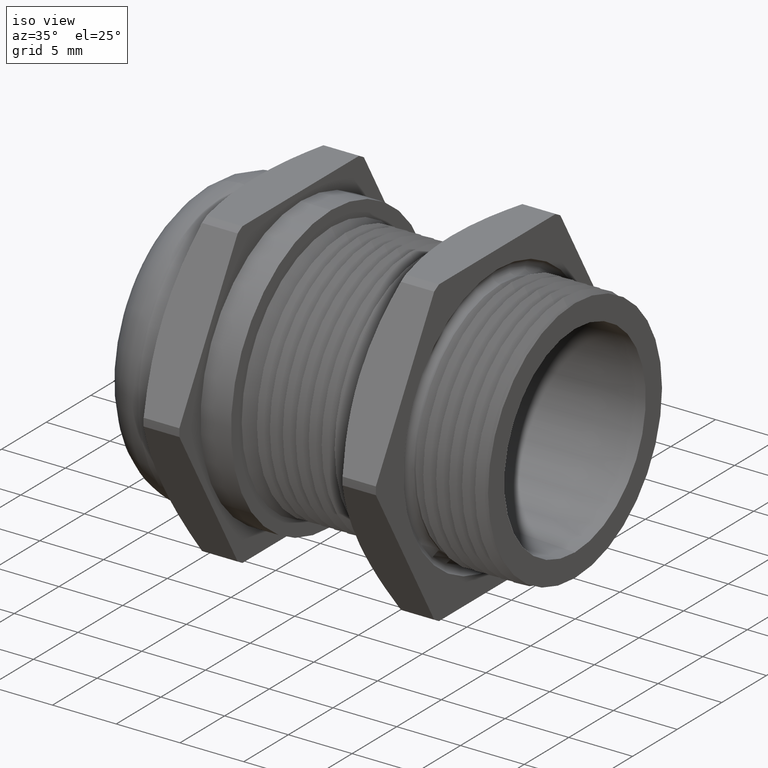
[diagram: clean part render]
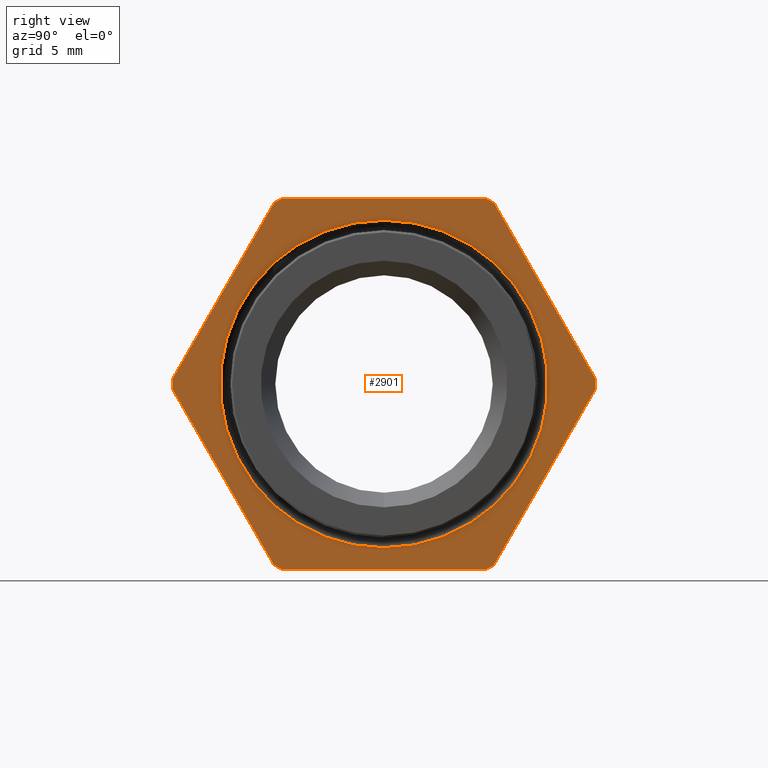
[diagram: tour spotlight — one face highlighted and labeled with its STEP entity id]
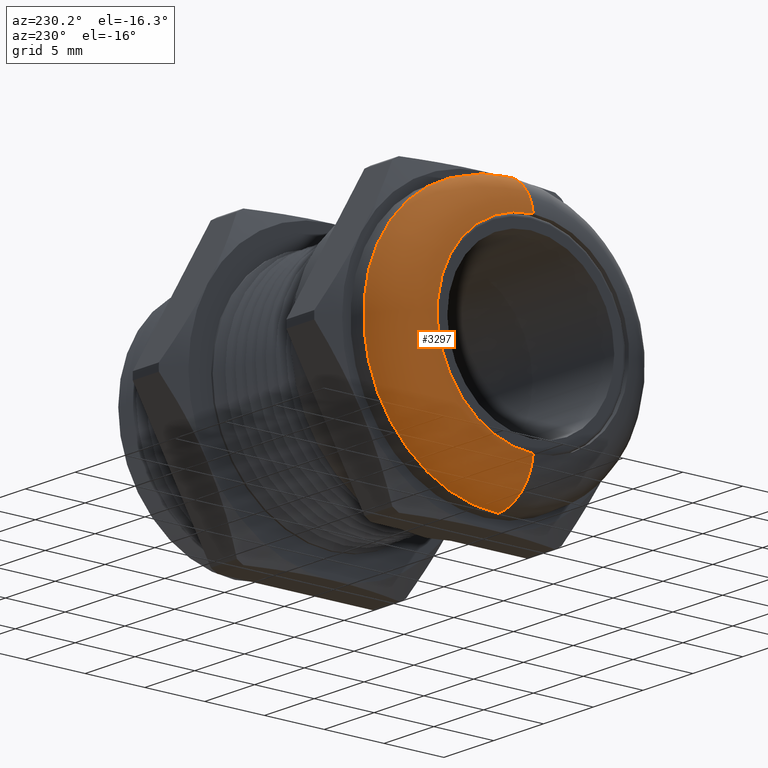
[diagram: tour spotlight — one face highlighted and labeled with its STEP entity id]
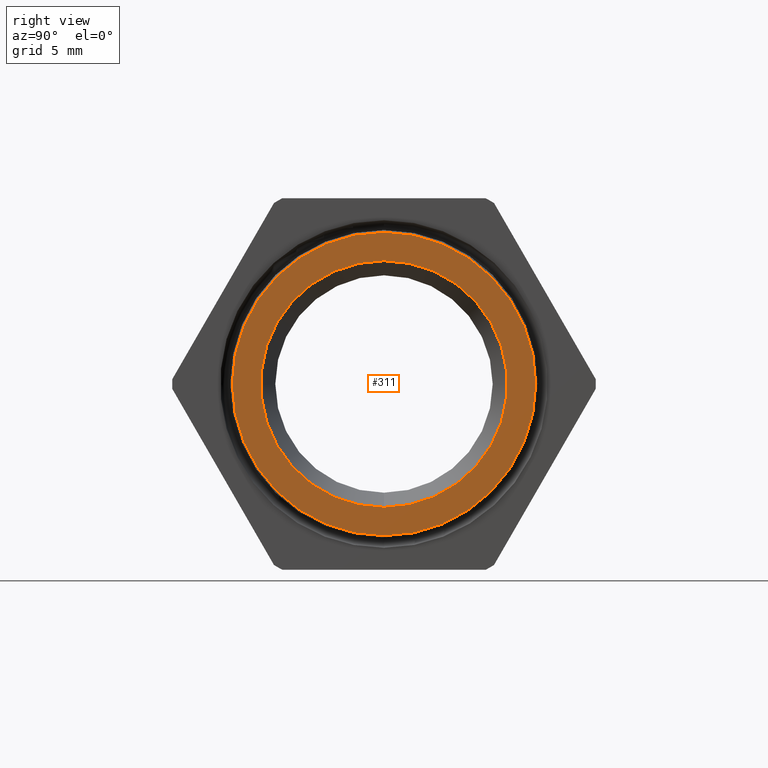
[diagram: tour spotlight — one face highlighted and labeled with its STEP entity id]
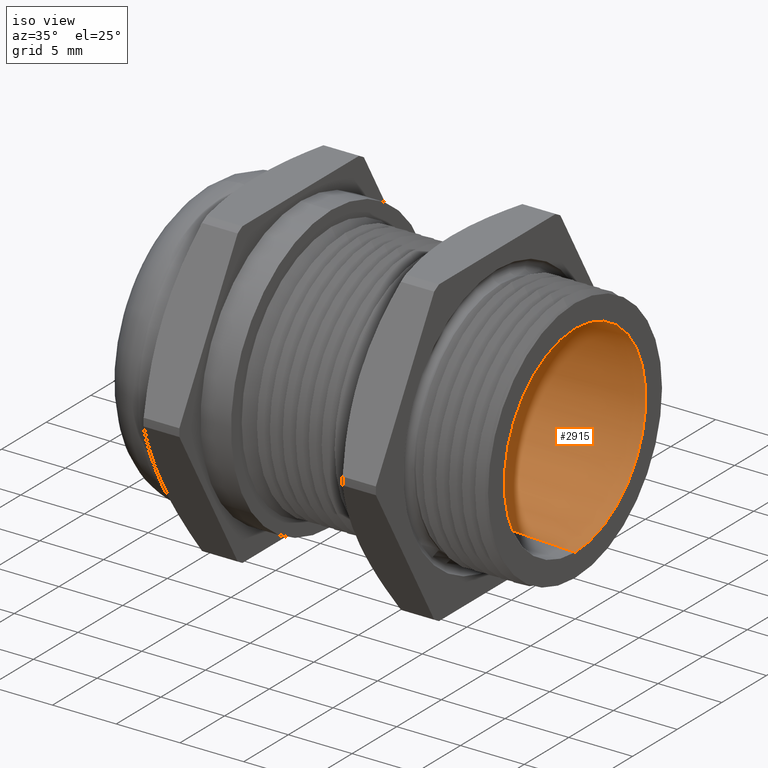
[diagram: tour spotlight — one face highlighted and labeled with its STEP entity id]
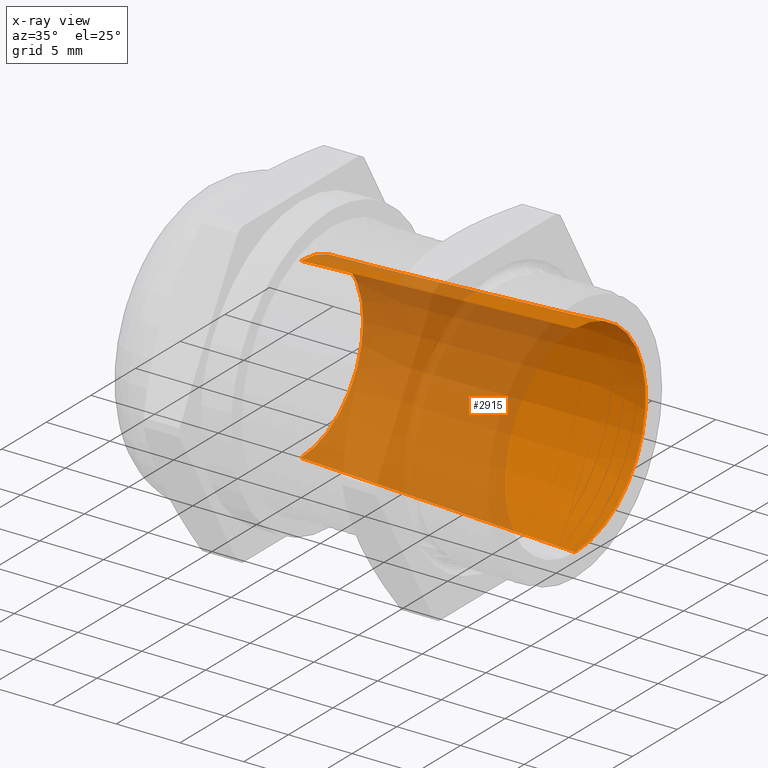
[diagram: x-ray of the same camera — body ghosted, this tour face saturated]
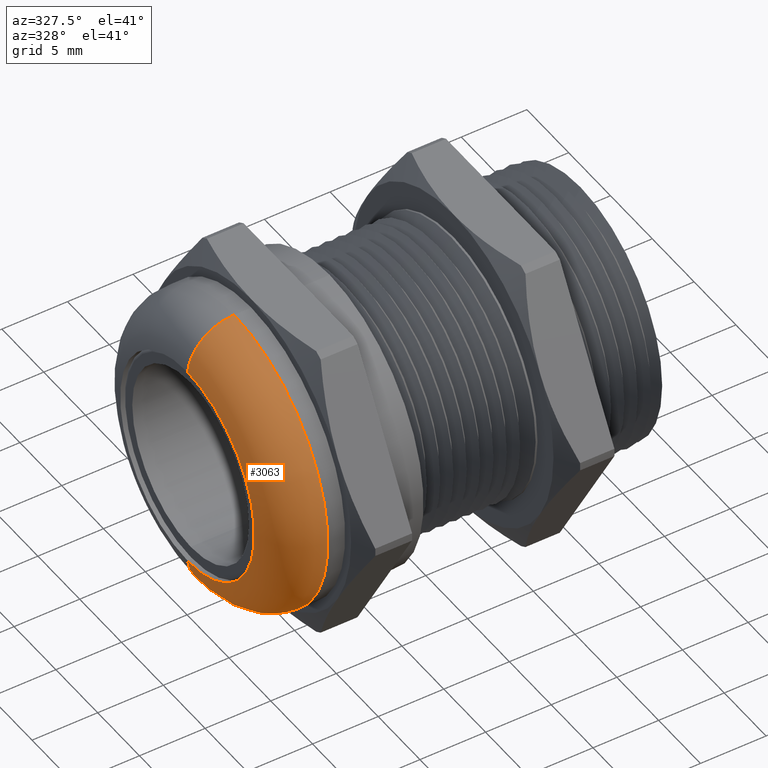
[diagram: tour spotlight — one face highlighted and labeled with its STEP entity id]
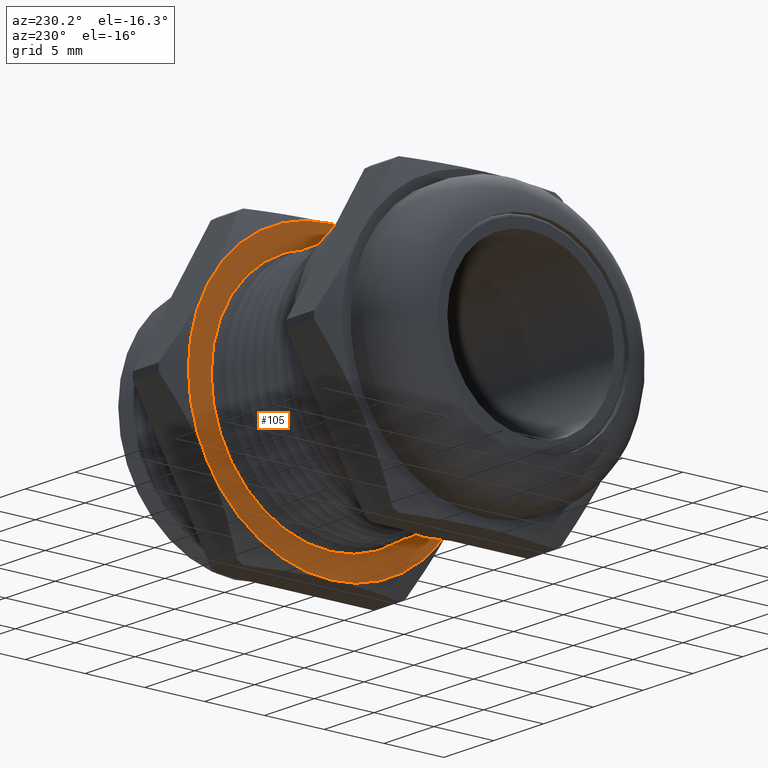
[diagram: tour spotlight — one face highlighted and labeled with its STEP entity id]
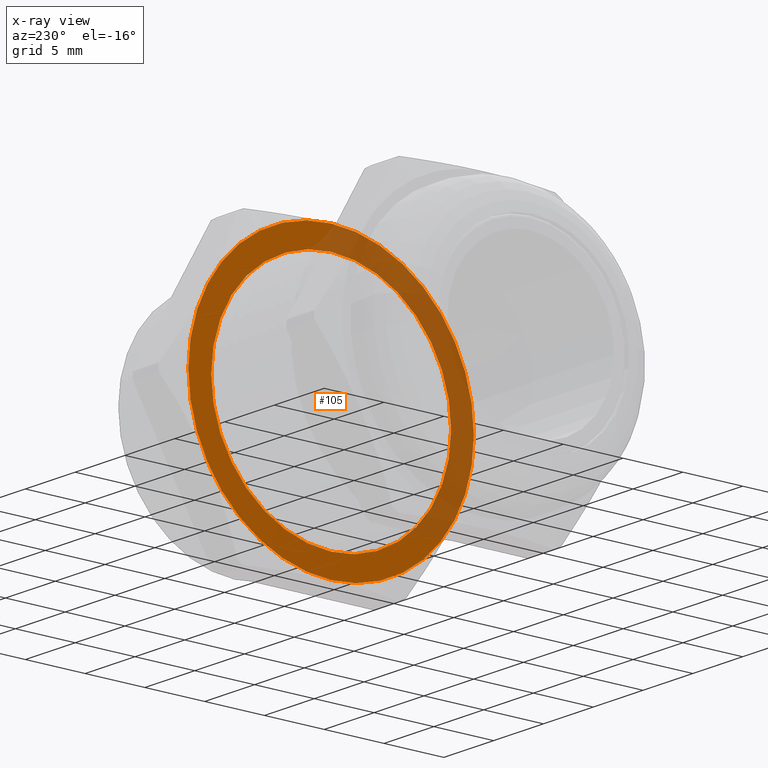
[diagram: x-ray of the same camera — body ghosted, this tour face saturated]
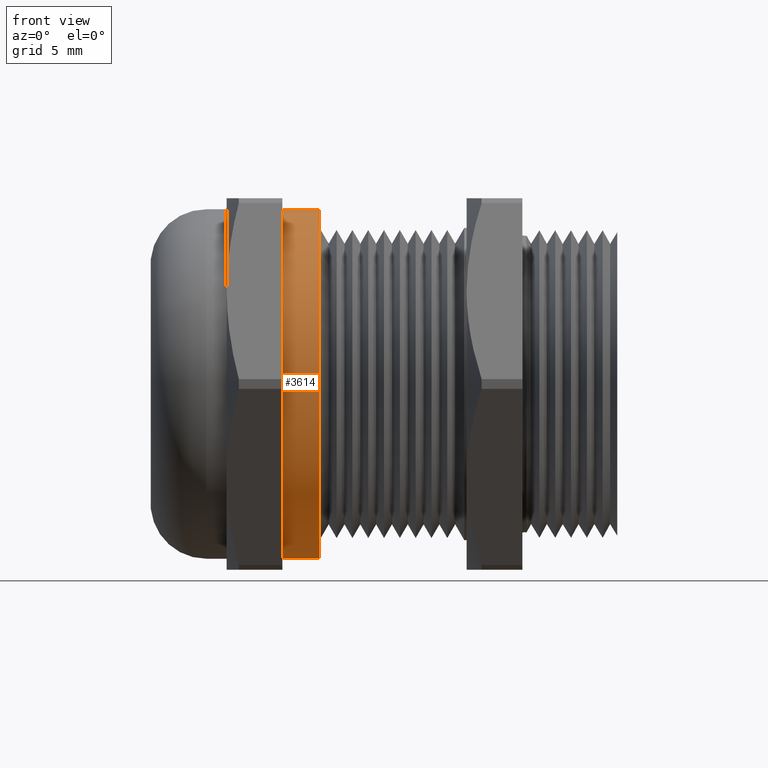
[diagram: tour spotlight — one face highlighted and labeled with its STEP entity id]
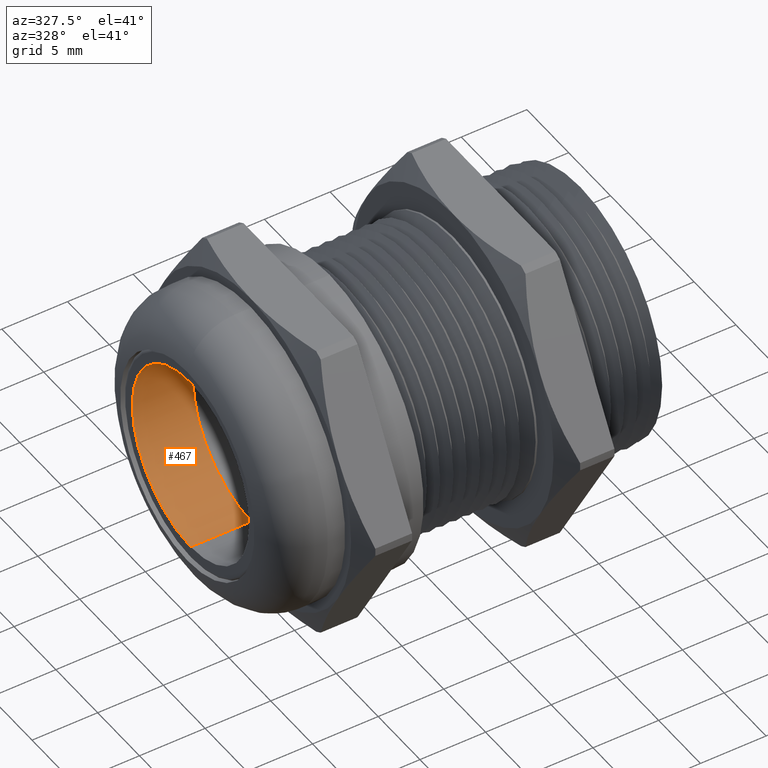
[diagram: tour spotlight — one face highlighted and labeled with its STEP entity id]
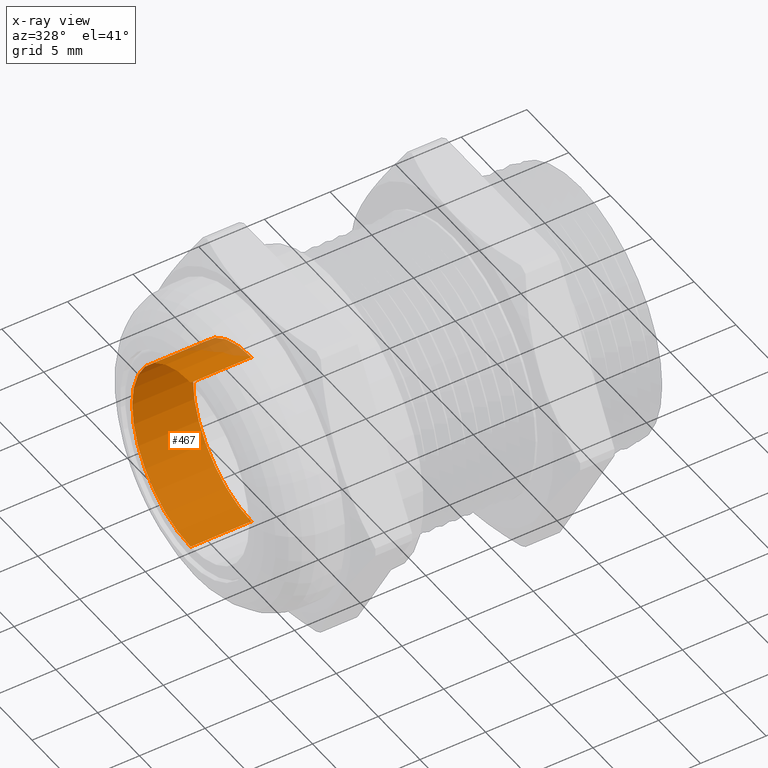
[diagram: x-ray of the same camera — body ghosted, this tour face saturated]
A machine part: a face-by-face anatomy tour. The part has 129 B-rep faces; the first image is the clean iso view, then the 8 largest visible faces are spotlighted one at a time (largest first), each with its STEP entity span.

Face 1 — right view, entity #2901. In plain terms, the highlighted planar face has unit normal (-1, 0, 0).
Definition (entity closure, byte-faithful):
#4 = VERTEX_POINT ( 'NONE', #461 ) ;
#6 = EDGE_CURVE ( 'NONE', #4, #7, #460, .T. ) ;
#7 = VERTEX_POINT ( 'NONE', #514 ) ;
#31 = EDGE_CURVE ( 'NONE', #44, #3141, #564, .T. ) ;
#44 = VERTEX_POINT ( 'NONE', #585 ) ;
#46 = EDGE_CURVE ( 'NONE', #44, #47, #584, .T. ) ;
#47 = VERTEX_POINT ( 'NONE', #579 ) ;
#62 = EDGE_CURVE ( 'NONE', #3128, #3157, #625, .T. ) ;
#77 = EDGE_CURVE ( 'NONE', #3154, #3147, #652, .T. ) ;
#82 = EDGE_CURVE ( 'NONE', #3196, #7, #633, .T. ) ;
#92 = EDGE_CURVE ( 'NONE', #3144, #3188, #671, .T. ) ;
#97 = EDGE_CURVE ( 'NONE', #4, #47, #714, .T. ) ;
#447 = VERTEX_POINT ( 'NONE', #1388 ) ;
#456 = DIRECTION ( 'NONE',  ( 0.0000000000000000000, 0.0000000000000000000, 1.000000000000000000 ) ) ;
#457 = DIRECTION ( 'NONE',  ( -1.000000000000000000, 0.0000000000000000000, 0.0000000000000000000 ) ) ;
#458 = CARTESIAN_POINT ( 'NONE',  ( 0.3499999999999998100, 0.0000000000000000000, 0.0000000000000000000 ) ) ;
#459 = AXIS2_PLACEMENT_3D ( 'NONE', #458, #457, #456 ) ;
#460 = CIRCLE ( 'NONE', #459, 0.5357999999999999400 ) ;
#461 = CARTESIAN_POINT ( 'NONE',  ( 0.3499999999999999800, 0.5356609023026838200, 0.01220810158356288300 ) ) ;
#514 = CARTESIAN_POINT ( 'NONE',  ( 0.3499999999999998100, 0.5356609023026838200, -0.01220810158356293500 ) ) ;
#561 = DIRECTION ( 'NONE',  ( 0.0000000000000000000, -1.000000000000000000, 0.0000000000000000000 ) ) ;
#562 = VECTOR ( 'NONE', #561, 39.37007874015748100 ) ;
#563 = CARTESIAN_POINT ( 'NONE',  ( 0.3499999999999999800, 0.2572579250479953800, 0.4699999999999999200 ) ) ;
#564 = LINE ( 'NONE', #563, #562 ) ;
#579 = CARTESIAN_POINT ( 'NONE',  ( 0.3499999999999998100, 0.2784029772546880400, 0.4577918984164371900 ) ) ;
#580 = DIRECTION ( 'NONE',  ( 0.0000000000000000000, 0.0000000000000000000, 1.000000000000000000 ) ) ;
#581 = DIRECTION ( 'NONE',  ( -1.000000000000000000, 0.0000000000000000000, 0.0000000000000000000 ) ) ;
#582 = CARTESIAN_POINT ( 'NONE',  ( 0.3499999999999998100, 0.0000000000000000000, 0.0000000000000000000 ) ) ;
#583 = AXIS2_PLACEMENT_3D ( 'NONE', #582, #581, #580 ) ;
#584 = CIRCLE ( 'NONE', #583, 0.5357999999999999400 ) ;
#585 = CARTESIAN_POINT ( 'NONE',  ( 0.3499999999999999800, 0.2572579250479953800, 0.4699999999999999200 ) ) ;
#614 = DIRECTION ( 'NONE',  ( 0.0000000000000000000, -0.5000000000000003300, -0.8660254037844383700 ) ) ;
#615 = VECTOR ( 'NONE', #614, 39.37007874015748100 ) ;
#624 = CARTESIAN_POINT ( 'NONE',  ( 0.3499999999999999800, -0.2784029772546880400, 0.4577918984164371900 ) ) ;
#625 = LINE ( 'NONE', #624, #615 ) ;
#633 = LINE ( 'NONE', #639, #687 ) ;
#639 = CARTESIAN_POINT ( 'NONE',  ( 0.3499999999999999800, 0.2784029772546883800, -0.4577918984164369200 ) ) ;
#641 = DIRECTION ( 'NONE',  ( 0.0000000000000000000, 0.5000000000000000000, -0.8660254037844386000 ) ) ;
#650 = VECTOR ( 'NONE', #641, 39.37007874015748900 ) ;
#651 = CARTESIAN_POINT ( 'NONE',  ( 0.3499999999999999800, -0.5356609023026838200, -0.01220810158356306800 ) ) ;
#652 = LINE ( 'NONE', #651, #650 ) ;
#669 = VECTOR ( 'NONE', #721, 39.37007874015748100 ) ;
#670 = CARTESIAN_POINT ( 'NONE',  ( 0.3499999999999999800, -0.2572579250479952700, -0.4699999999999999200 ) ) ;
#671 = LINE ( 'NONE', #670, #669 ) ;
#686 = DIRECTION ( 'NONE',  ( 0.0000000000000000000, 0.5000000000000000000, 0.8660254037844386000 ) ) ;
#687 = VECTOR ( 'NONE', #686, 39.37007874015748900 ) ;
#711 = DIRECTION ( 'NONE',  ( 0.0000000000000000000, -0.5000000000000003300, 0.8660254037844383700 ) ) ;
#712 = VECTOR ( 'NONE', #711, 39.37007874015748100 ) ;
#713 = CARTESIAN_POINT ( 'NONE',  ( 0.3499999999999999800, 0.5356609023026838200, 0.01220810158356286400 ) ) ;
#714 = LINE ( 'NONE', #713, #712 ) ;
#721 = DIRECTION ( 'NONE',  ( 0.0000000000000000000, 1.000000000000000000, 0.0000000000000000000 ) ) ;
#1388 = CARTESIAN_POINT ( 'NONE',  ( 0.3499999999999999800, 0.0000000000000000000, 0.4142260930752324500 ) ) ;
#1460 = DIRECTION ( 'NONE',  ( 0.0000000000000000000, 0.0000000000000000000, 1.000000000000000000 ) ) ;
#1461 = DIRECTION ( 'NONE',  ( -1.000000000000000000, 0.0000000000000000000, 0.0000000000000000000 ) ) ;
#1462 = CARTESIAN_POINT ( 'NONE',  ( 0.3499999999999999800, 0.5357999999999999400, 0.0000000000000000000 ) ) ;
#1463 = AXIS2_PLACEMENT_3D ( 'NONE', #1462, #1461, #1460 ) ;
#1464 = FACE_OUTER_BOUND ( 'NONE', #2889, .T. ) ;
#1465 = FACE_BOUND ( 'NONE', #2891, .T. ) ;
#1470 = PLANE ( 'NONE',  #1463 ) ;
#1759 = CARTESIAN_POINT ( 'NONE',  ( 0.3499999999999999800, -0.2784029772546880400, 0.4577918984164371900 ) ) ;
#1787 = CARTESIAN_POINT ( 'NONE',  ( 0.3499999999999998100, -0.2784029772546884900, -0.4577918984164369200 ) ) ;
#1788 = DIRECTION ( 'NONE',  ( 0.0000000000000000000, 0.0000000000000000000, 1.000000000000000000 ) ) ;
#1789 = DIRECTION ( 'NONE',  ( -1.000000000000000000, 0.0000000000000000000, 0.0000000000000000000 ) ) ;
#1790 = CARTESIAN_POINT ( 'NONE',  ( 0.3499999999999998100, 0.0000000000000000000, 0.0000000000000000000 ) ) ;
#1791 = AXIS2_PLACEMENT_3D ( 'NONE', #1790, #1789, #1788 ) ;
#1792 = CIRCLE ( 'NONE', #1791, 0.5357999999999999400 ) ;
#1793 = CARTESIAN_POINT ( 'NONE',  ( 0.3499999999999999800, -0.2572579250479953800, -0.4699999999999999200 ) ) ;
#1798 = CARTESIAN_POINT ( 'NONE',  ( 0.3499999999999998100, -0.2572579250479953800, 0.4699999999999999200 ) ) ;
#1799 = DIRECTION ( 'NONE',  ( 0.0000000000000000000, 0.0000000000000000000, 1.000000000000000000 ) ) ;
#1800 = DIRECTION ( 'NONE',  ( -1.000000000000000000, 0.0000000000000000000, 0.0000000000000000000 ) ) ;
#1801 = AXIS2_PLACEMENT_3D ( 'NONE', #1806, #1800, #1799 ) ;
#1802 = CIRCLE ( 'NONE', #1801, 0.5357999999999999400 ) ;
#1806 = CARTESIAN_POINT ( 'NONE',  ( 0.3499999999999998100, 0.0000000000000000000, 0.0000000000000000000 ) ) ;
#1827 = CARTESIAN_POINT ( 'NONE',  ( 0.3499999999999998100, -0.5356609023026838200, 0.01220810158356286400 ) ) ;
#1828 = DIRECTION ( 'NONE',  ( 0.0000000000000000000, 0.0000000000000000000, 1.000000000000000000 ) ) ;
#1829 = DIRECTION ( 'NONE',  ( -1.000000000000000000, 0.0000000000000000000, 0.0000000000000000000 ) ) ;
#1830 = CARTESIAN_POINT ( 'NONE',  ( 0.3499999999999998100, 0.0000000000000000000, 0.0000000000000000000 ) ) ;
#1831 = AXIS2_PLACEMENT_3D ( 'NONE', #1830, #1829, #1828 ) ;
#1832 = CIRCLE ( 'NONE', #1831, 0.5357999999999999400 ) ;
#1833 = CARTESIAN_POINT ( 'NONE',  ( 0.3499999999999999800, -0.5356609023026838200, -0.01220810158356305600 ) ) ;
#1880 = CARTESIAN_POINT ( 'NONE',  ( 0.3499999999999999800, 0.2784029772546883800, -0.4577918984164368600 ) ) ;
#1892 = CARTESIAN_POINT ( 'NONE',  ( 0.3499999999999998100, 0.2572579250479952700, -0.4699999999999999700 ) ) ;
#1893 = DIRECTION ( 'NONE',  ( 0.0000000000000000000, 0.0000000000000000000, 1.000000000000000000 ) ) ;
#1894 = DIRECTION ( 'NONE',  ( -1.000000000000000000, 0.0000000000000000000, 0.0000000000000000000 ) ) ;
#1895 = CARTESIAN_POINT ( 'NONE',  ( 0.3499999999999998100, 0.0000000000000000000, 0.0000000000000000000 ) ) ;
#1896 = AXIS2_PLACEMENT_3D ( 'NONE', #1895, #1894, #1893 ) ;
#1897 = CIRCLE ( 'NONE', #1896, 0.5357999999999999400 ) ;
#2075 = DIRECTION ( 'NONE',  ( 0.0000000000000000000, 0.0000000000000000000, 1.000000000000000000 ) ) ;
#2076 = DIRECTION ( 'NONE',  ( -1.000000000000000000, 0.0000000000000000000, 0.0000000000000000000 ) ) ;
#2077 = AXIS2_PLACEMENT_3D ( 'NONE', #2084, #2076, #2075 ) ;
#2078 = CIRCLE ( 'NONE', #2077, 0.4142260930752324500 ) ;
#2084 = CARTESIAN_POINT ( 'NONE',  ( 0.3499999999999999800, 0.0000000000000000000, 0.0000000000000000000 ) ) ;
#2085 = CARTESIAN_POINT ( 'NONE',  ( 0.3499999999999999800, 5.072806590078969600E-017, -0.4142260930752324500 ) ) ;
#2147 = DIRECTION ( 'NONE',  ( 0.0000000000000000000, 0.0000000000000000000, 1.000000000000000000 ) ) ;
#2148 = DIRECTION ( 'NONE',  ( -1.000000000000000000, 0.0000000000000000000, 0.0000000000000000000 ) ) ;
#2149 = CARTESIAN_POINT ( 'NONE',  ( 0.3499999999999999800, 0.0000000000000000000, 0.0000000000000000000 ) ) ;
#2150 = AXIS2_PLACEMENT_3D ( 'NONE', #2149, #2148, #2147 ) ;
#2151 = CIRCLE ( 'NONE', #2150, 0.4142260930752324500 ) ;
#2881 = ORIENTED_EDGE ( 'NONE', *, *, #77, .T. ) ;
#2882 = ORIENTED_EDGE ( 'NONE', *, *, #3146, .F. ) ;
#2883 = ORIENTED_EDGE ( 'NONE', *, *, #3156, .F. ) ;
#2884 = ORIENTED_EDGE ( 'NONE', *, *, #92, .T. ) ;
#2887 = ORIENTED_EDGE ( 'NONE', *, *, #62, .T. ) ;
#2889 = EDGE_LOOP ( 'NONE', ( #2887, #2883, #2881, #2882, #2884, #3626, #2916, #2917, #2918, #2922, #2912, #2913 ) ) ;
#2891 = EDGE_LOOP ( 'NONE', ( #2892, #2893 ) ) ;
#2892 = ORIENTED_EDGE ( 'NONE', *, *, #3284, .T. ) ;
#2893 = ORIENTED_EDGE ( 'NONE', *, *, #3310, .T. ) ;
#2901 = ADVANCED_FACE ( 'NONE', ( #1465, #1464 ), #1470, .F. ) ;
#2912 = ORIENTED_EDGE ( 'NONE', *, *, #31, .T. ) ;
#2913 = ORIENTED_EDGE ( 'NONE', *, *, #3140, .F. ) ;
#2916 = ORIENTED_EDGE ( 'NONE', *, *, #82, .T. ) ;
#2917 = ORIENTED_EDGE ( 'NONE', *, *, #6, .F. ) ;
#2918 = ORIENTED_EDGE ( 'NONE', *, *, #97, .T. ) ;
#2922 = ORIENTED_EDGE ( 'NONE', *, *, #46, .F. ) ;
#3128 = VERTEX_POINT ( 'NONE', #1759 ) ;
#3140 = EDGE_CURVE ( 'NONE', #3128, #3141, #1802, .T. ) ;
#3141 = VERTEX_POINT ( 'NONE', #1798 ) ;
#3144 = VERTEX_POINT ( 'NONE', #1793 ) ;
#3146 = EDGE_CURVE ( 'NONE', #3144, #3147, #1792, .T. ) ;
#3147 = VERTEX_POINT ( 'NONE', #1787 ) ;
#3154 = VERTEX_POINT ( 'NONE', #1833 ) ;
#3156 = EDGE_CURVE ( 'NONE', #3154, #3157, #1832, .T. ) ;
#3157 = VERTEX_POINT ( 'NONE', #1827 ) ;
#3187 = EDGE_CURVE ( 'NONE', #3196, #3188, #1897, .T. ) ;
#3188 = VERTEX_POINT ( 'NONE', #1892 ) ;
#3196 = VERTEX_POINT ( 'NONE', #1880 ) ;
#3281 = VERTEX_POINT ( 'NONE', #2085 ) ;
#3284 = EDGE_CURVE ( 'NONE', #447, #3281, #2078, .T. ) ;
#3310 = EDGE_CURVE ( 'NONE', #3281, #447, #2151, .T. ) ;
#3626 = ORIENTED_EDGE ( 'NONE', *, *, #3187, .F. ) ;

Face 2 — auxiliary view, entity #3297. In plain terms, the highlighted toroidal blend (fillet) surface has major radius 7.6463 mm and minor (blend) radius 3.5814 mm.
Definition (entity closure, byte-faithful):
#2101 = CARTESIAN_POINT ( 'NONE',  ( -0.5899999999999999700, 3.869883885305636800E-017, -0.3160000000000000600 ) ) ;
#2102 = CARTESIAN_POINT ( 'NONE',  ( -0.4497964024177694700, 0.0000000000000000000, 0.4420349999999999600 ) ) ;
#2103 = CARTESIAN_POINT ( 'NONE',  ( -0.4497964024177694700, 5.413367478611002500E-017, -0.4420349999999999600 ) ) ;
#2104 = DIRECTION ( 'NONE',  ( 0.0000000000000000000, 0.0000000000000000000, 1.000000000000000000 ) ) ;
#2105 = DIRECTION ( 'NONE',  ( 1.000000000000000000, 0.0000000000000000000, 0.0000000000000000000 ) ) ;
#2106 = CARTESIAN_POINT ( 'NONE',  ( -0.4497964024177694700, 0.0000000000000000000, 0.0000000000000000000 ) ) ;
#2107 = AXIS2_PLACEMENT_3D ( 'NONE', #2106, #2105, #2104 ) ;
#2108 = CIRCLE ( 'NONE', #2107, 0.4420349999999999600 ) ;
#2109 = DIRECTION ( 'NONE',  ( 0.0000000000000000000, 0.0000000000000000000, 1.000000000000000000 ) ) ;
#2110 = DIRECTION ( 'NONE',  ( -1.000000000000000000, 0.0000000000000000000, 0.0000000000000000000 ) ) ;
#2111 = AXIS2_PLACEMENT_3D ( 'NONE', #2113, #2110, #2109 ) ;
#2112 = TOROIDAL_SURFACE ( 'NONE', #2111, 0.3010350000000000000, 0.1409999999999999900 ) ;
#2113 = CARTESIAN_POINT ( 'NONE',  ( -0.4497964024177695800, 0.0000000000000000000, 0.0000000000000000000 ) ) ;
#2114 = FACE_OUTER_BOUND ( 'NONE', #3298, .T. ) ;
#2131 = DIRECTION ( 'NONE',  ( 0.0000000000000000000, 0.0000000000000000000, -1.000000000000000000 ) ) ;
#2132 = DIRECTION ( 'NONE',  ( 0.0000000000000000000, -1.000000000000000000, 0.0000000000000000000 ) ) ;
#2133 = CARTESIAN_POINT ( 'NONE',  ( -0.4497964024177695800, 0.0000000000000000000, 0.3010350000000000000 ) ) ;
#2134 = AXIS2_PLACEMENT_3D ( 'NONE', #2133, #2132, #2131 ) ;
#2135 = CIRCLE ( 'NONE', #2134, 0.1409999999999999900 ) ;
#2136 = CARTESIAN_POINT ( 'NONE',  ( -0.5899999999999999700, 0.0000000000000000000, 0.3160000000000000600 ) ) ;
#2137 = DIRECTION ( 'NONE',  ( 0.0000000000000000000, 0.0000000000000000000, 1.000000000000000000 ) ) ;
#2138 = DIRECTION ( 'NONE',  ( -1.000000000000000000, 0.0000000000000000000, 0.0000000000000000000 ) ) ;
#2139 = CARTESIAN_POINT ( 'NONE',  ( -0.5899999999999999700, 0.0000000000000000000, 0.0000000000000000000 ) ) ;
#2140 = AXIS2_PLACEMENT_3D ( 'NONE', #2139, #2138, #2137 ) ;
#2141 = CIRCLE ( 'NONE', #2140, 0.3160000000000000600 ) ;
#2142 = DIRECTION ( 'NONE',  ( 0.0000000000000000000, -1.224646799147353000E-016, 1.000000000000000000 ) ) ;
#2143 = DIRECTION ( 'NONE',  ( 0.0000000000000000000, 1.000000000000000000, 1.224646799147353200E-016 ) ) ;
#2144 = CARTESIAN_POINT ( 'NONE',  ( -0.4497964024177695800, 3.686615491813234600E-017, -0.3010350000000000000 ) ) ;
#2145 = AXIS2_PLACEMENT_3D ( 'NONE', #2144, #2143, #2142 ) ;
#2146 = CIRCLE ( 'NONE', #2145, 0.1409999999999999900 ) ;
#3297 = ADVANCED_FACE ( 'NONE', ( #2114 ), #2112, .T. ) ;
#3298 = EDGE_LOOP ( 'NONE', ( #3299, #3312, #3314, #3317 ) ) ;
#3299 = ORIENTED_EDGE ( 'NONE', *, *, #3300, .F. ) ;
#3300 = EDGE_CURVE ( 'NONE', #3301, #3302, #2108, .T. ) ;
#3301 = VERTEX_POINT ( 'NONE', #2103 ) ;
#3302 = VERTEX_POINT ( 'NONE', #2102 ) ;
#3303 = VERTEX_POINT ( 'NONE', #2101 ) ;
#3312 = ORIENTED_EDGE ( 'NONE', *, *, #3313, .T. ) ;
#3313 = EDGE_CURVE ( 'NONE', #3301, #3303, #2146, .T. ) ;
#3314 = ORIENTED_EDGE ( 'NONE', *, *, #3315, .F. ) ;
#3315 = EDGE_CURVE ( 'NONE', #3316, #3303, #2141, .T. ) ;
#3316 = VERTEX_POINT ( 'NONE', #2136 ) ;
#3317 = ORIENTED_EDGE ( 'NONE', *, *, #3318, .F. ) ;
#3318 = EDGE_CURVE ( 'NONE', #3302, #3316, #2135, .T. ) ;

Face 3 — right view, entity #311. In plain terms, the highlighted planar face has unit normal (-1, 0, 0).
Definition (entity closure, byte-faithful):
#311 = ADVANCED_FACE ( 'NONE', ( #1172, #1171 ), #1111, .F. ) ;
#312 = EDGE_LOOP ( 'NONE', ( #313, #314 ) ) ;
#313 = ORIENTED_EDGE ( 'NONE', *, *, #3542, .T. ) ;
#314 = ORIENTED_EDGE ( 'NONE', *, *, #315, .T. ) ;
#315 = EDGE_CURVE ( 'NONE', #3540, #3543, #1166, .T. ) ;
#316 = EDGE_LOOP ( 'NONE', ( #317, #319 ) ) ;
#317 = ORIENTED_EDGE ( 'NONE', *, *, #318, .F. ) ;
#318 = EDGE_CURVE ( 'NONE', #3263, #3262, #1161, .T. ) ;
#319 = ORIENTED_EDGE ( 'NONE', *, *, #3324, .F. ) ;
#1111 = PLANE ( 'NONE',  #1170 ) ;
#1157 = DIRECTION ( 'NONE',  ( 0.0000000000000000000, 0.0000000000000000000, 1.000000000000000000 ) ) ;
#1158 = DIRECTION ( 'NONE',  ( -1.000000000000000000, 0.0000000000000000000, 0.0000000000000000000 ) ) ;
#1159 = CARTESIAN_POINT ( 'NONE',  ( 0.5899999999999999700, 0.0000000000000000000, 1.243131120897755100E-017 ) ) ;
#1160 = AXIS2_PLACEMENT_3D ( 'NONE', #1159, #1158, #1157 ) ;
#1161 = CIRCLE ( 'NONE', #1160, 0.3837188332679145600 ) ;
#1162 = DIRECTION ( 'NONE',  ( 0.0000000000000000000, 0.0000000000000000000, 1.000000000000000000 ) ) ;
#1163 = DIRECTION ( 'NONE',  ( -1.000000000000000000, 0.0000000000000000000, 0.0000000000000000000 ) ) ;
#1164 = CARTESIAN_POINT ( 'NONE',  ( 0.5899999999999999700, 0.0000000000000000000, 0.0000000000000000000 ) ) ;
#1165 = AXIS2_PLACEMENT_3D ( 'NONE', #1164, #1163, #1162 ) ;
#1166 = CIRCLE ( 'NONE', #1165, 0.3119808186435099600 ) ;
#1167 = DIRECTION ( 'NONE',  ( 0.0000000000000000000, 0.0000000000000000000, 1.000000000000000000 ) ) ;
#1168 = DIRECTION ( 'NONE',  ( -1.000000000000000000, 0.0000000000000000000, 0.0000000000000000000 ) ) ;
#1169 = CARTESIAN_POINT ( 'NONE',  ( 0.5899999999999999700, 0.3887153788233951300, 0.0000000000000000000 ) ) ;
#1170 = AXIS2_PLACEMENT_3D ( 'NONE', #1169, #1168, #1167 ) ;
#1171 = FACE_OUTER_BOUND ( 'NONE', #316, .T. ) ;
#1172 = FACE_BOUND ( 'NONE', #312, .T. ) ;
#2060 = CARTESIAN_POINT ( 'NONE',  ( 0.5899999999999999700, 0.0000000000000000000, -0.3837188332679145600 ) ) ;
#2061 = CARTESIAN_POINT ( 'NONE',  ( 0.5899999999999999700, 4.699200409341084600E-017, 0.3837188332679145600 ) ) ;
#2179 = DIRECTION ( 'NONE',  ( 0.0000000000000000000, 0.0000000000000000000, 1.000000000000000000 ) ) ;
#2180 = DIRECTION ( 'NONE',  ( -1.000000000000000000, 0.0000000000000000000, 0.0000000000000000000 ) ) ;
#2181 = CARTESIAN_POINT ( 'NONE',  ( 0.5899999999999999700, 0.0000000000000000000, 1.243131120897755100E-017 ) ) ;
#2182 = AXIS2_PLACEMENT_3D ( 'NONE', #2181, #2180, #2179 ) ;
#2183 = CIRCLE ( 'NONE', #2182, 0.3837188332679145600 ) ;
#2567 = CARTESIAN_POINT ( 'NONE',  ( 0.5899999999999999700, 0.0000000000000000000, 0.0000000000000000000 ) ) ;
#2568 = CARTESIAN_POINT ( 'NONE',  ( 0.5899999999999999700, 3.820663109471453500E-017, 0.3119808186435099600 ) ) ;
#2623 = CARTESIAN_POINT ( 'NONE',  ( 0.5899999999999999700, 0.0000000000000000000, -0.3119808186435099600 ) ) ;
#2624 = DIRECTION ( 'NONE',  ( 0.0000000000000000000, 0.0000000000000000000, 1.000000000000000000 ) ) ;
#2625 = DIRECTION ( 'NONE',  ( -1.000000000000000000, 0.0000000000000000000, 0.0000000000000000000 ) ) ;
#2626 = AXIS2_PLACEMENT_3D ( 'NONE', #2567, #2625, #2624 ) ;
#2627 = CIRCLE ( 'NONE', #2626, 0.3119808186435099600 ) ;
#3262 = VERTEX_POINT ( 'NONE', #2061 ) ;
#3263 = VERTEX_POINT ( 'NONE', #2060 ) ;
#3324 = EDGE_CURVE ( 'NONE', #3262, #3263, #2183, .T. ) ;
#3540 = VERTEX_POINT ( 'NONE', #2568 ) ;
#3542 = EDGE_CURVE ( 'NONE', #3543, #3540, #2627, .T. ) ;
#3543 = VERTEX_POINT ( 'NONE', #2623 ) ;

Face 4 — iso view, entity #2915. An x-ray twin of the same camera follows (body ghosted, this face saturated) — the face is partly hidden behind the body. In plain terms, the highlighted conical surface has half-angle 2.5 deg.
Definition (entity closure, byte-faithful):
#276 = VERTEX_POINT ( 'NONE', #1052 ) ;
#279 = EDGE_CURVE ( 'NONE', #294, #3540, #1051, .T. ) ;
#294 = VERTEX_POINT ( 'NONE', #1080 ) ;
#315 = EDGE_CURVE ( 'NONE', #3540, #3543, #1166, .T. ) ;
#1048 = DIRECTION ( 'NONE',  ( 0.9990482215818576900, 5.341834311772747100E-018, 0.04361938736533619400 ) ) ;
#1049 = VECTOR ( 'NONE', #1048, 39.37007874015748100 ) ;
#1050 = CARTESIAN_POINT ( 'NONE',  ( -0.2570000000000000100, 3.367778697655221900E-017, 0.2750000000000000800 ) ) ;
#1051 = LINE ( 'NONE', #1050, #1049 ) ;
#1052 = CARTESIAN_POINT ( 'NONE',  ( -0.2570000000000000100, 0.0000000000000000000, -0.2750000000000000800 ) ) ;
#1080 = CARTESIAN_POINT ( 'NONE',  ( -0.2570000000000000100, 3.594220903563338300E-017, 0.2750000000000000800 ) ) ;
#1162 = DIRECTION ( 'NONE',  ( 0.0000000000000000000, 0.0000000000000000000, 1.000000000000000000 ) ) ;
#1163 = DIRECTION ( 'NONE',  ( -1.000000000000000000, 0.0000000000000000000, 0.0000000000000000000 ) ) ;
#1164 = CARTESIAN_POINT ( 'NONE',  ( 0.5899999999999999700, 0.0000000000000000000, 0.0000000000000000000 ) ) ;
#1165 = AXIS2_PLACEMENT_3D ( 'NONE', #1164, #1163, #1162 ) ;
#1166 = CIRCLE ( 'NONE', #1165, 0.3119808186435099600 ) ;
#1496 = DIRECTION ( 'NONE',  ( 0.0000000000000000000, 0.0000000000000000000, -1.000000000000000000 ) ) ;
#1497 = AXIS2_PLACEMENT_3D ( 'NONE', #1509, #1507, #1496 ) ;
#1505 = CONICAL_SURFACE ( 'NONE', #1497, 0.2750000000000000800, 0.04363323129985843100 ) ;
#1506 = FACE_OUTER_BOUND ( 'NONE', #2914, .T. ) ;
#1507 = DIRECTION ( 'NONE',  ( 1.000000000000000000, 0.0000000000000000000, 0.0000000000000000000 ) ) ;
#1509 = CARTESIAN_POINT ( 'NONE',  ( -0.2570000000000000100, 0.0000000000000000000, 0.0000000000000000000 ) ) ;
#2568 = CARTESIAN_POINT ( 'NONE',  ( 0.5899999999999999700, 3.820663109471453500E-017, 0.3119808186435099600 ) ) ;
#2619 = DIRECTION ( 'NONE',  ( 0.9990482215818576900, 0.0000000000000000000, -0.04361938736533619400 ) ) ;
#2620 = VECTOR ( 'NONE', #2619, 39.37007874015748100 ) ;
#2621 = CARTESIAN_POINT ( 'NONE',  ( -0.2570000000000000100, 0.0000000000000000000, -0.2750000000000000800 ) ) ;
#2622 = LINE ( 'NONE', #2621, #2620 ) ;
#2623 = CARTESIAN_POINT ( 'NONE',  ( 0.5899999999999999700, 0.0000000000000000000, -0.3119808186435099600 ) ) ;
#2663 = DIRECTION ( 'NONE',  ( 0.0000000000000000000, 0.0000000000000000000, 1.000000000000000000 ) ) ;
#2664 = DIRECTION ( 'NONE',  ( -1.000000000000000000, 0.0000000000000000000, 0.0000000000000000000 ) ) ;
#2665 = AXIS2_PLACEMENT_3D ( 'NONE', #2672, #2664, #2663 ) ;
#2666 = CIRCLE ( 'NONE', #2665, 0.2750000000000000800 ) ;
#2672 = CARTESIAN_POINT ( 'NONE',  ( -0.2570000000000000100, 0.0000000000000000000, 0.0000000000000000000 ) ) ;
#2902 = ORIENTED_EDGE ( 'NONE', *, *, #3589, .T. ) ;
#2911 = ORIENTED_EDGE ( 'NONE', *, *, #279, .F. ) ;
#2914 = EDGE_LOOP ( 'NONE', ( #2911, #2902, #3588, #3586 ) ) ;
#2915 = ADVANCED_FACE ( 'NONE', ( #1506 ), #1505, .F. ) ;
#3540 = VERTEX_POINT ( 'NONE', #2568 ) ;
#3543 = VERTEX_POINT ( 'NONE', #2623 ) ;
#3545 = EDGE_CURVE ( 'NONE', #276, #3543, #2622, .T. ) ;
#3586 = ORIENTED_EDGE ( 'NONE', *, *, #315, .F. ) ;
#3588 = ORIENTED_EDGE ( 'NONE', *, *, #3545, .T. ) ;
#3589 = EDGE_CURVE ( 'NONE', #294, #276, #2666, .T. ) ;

Face 5 — auxiliary view, entity #3063. In plain terms, the highlighted toroidal blend (fillet) surface has major radius 7.6463 mm and minor (blend) radius 3.5814 mm.
Definition (entity closure, byte-faithful):
#1617 = TOROIDAL_SURFACE ( 'NONE', #1680, 0.3010350000000000000, 0.1409999999999999900 ) ;
#1622 = FACE_OUTER_BOUND ( 'NONE', #3064, .T. ) ;
#1677 = DIRECTION ( 'NONE',  ( 0.0000000000000000000, 0.0000000000000000000, 1.000000000000000000 ) ) ;
#1678 = DIRECTION ( 'NONE',  ( -1.000000000000000000, 0.0000000000000000000, 0.0000000000000000000 ) ) ;
#1679 = CARTESIAN_POINT ( 'NONE',  ( -0.4497964024177695800, 0.0000000000000000000, 0.0000000000000000000 ) ) ;
#1680 = AXIS2_PLACEMENT_3D ( 'NONE', #1679, #1678, #1677 ) ;
#2101 = CARTESIAN_POINT ( 'NONE',  ( -0.5899999999999999700, 3.869883885305636800E-017, -0.3160000000000000600 ) ) ;
#2102 = CARTESIAN_POINT ( 'NONE',  ( -0.4497964024177694700, 0.0000000000000000000, 0.4420349999999999600 ) ) ;
#2103 = CARTESIAN_POINT ( 'NONE',  ( -0.4497964024177694700, 5.413367478611002500E-017, -0.4420349999999999600 ) ) ;
#2131 = DIRECTION ( 'NONE',  ( 0.0000000000000000000, 0.0000000000000000000, -1.000000000000000000 ) ) ;
#2132 = DIRECTION ( 'NONE',  ( 0.0000000000000000000, -1.000000000000000000, 0.0000000000000000000 ) ) ;
#2133 = CARTESIAN_POINT ( 'NONE',  ( -0.4497964024177695800, 0.0000000000000000000, 0.3010350000000000000 ) ) ;
#2134 = AXIS2_PLACEMENT_3D ( 'NONE', #2133, #2132, #2131 ) ;
#2135 = CIRCLE ( 'NONE', #2134, 0.1409999999999999900 ) ;
#2136 = CARTESIAN_POINT ( 'NONE',  ( -0.5899999999999999700, 0.0000000000000000000, 0.3160000000000000600 ) ) ;
#2142 = DIRECTION ( 'NONE',  ( 0.0000000000000000000, -1.224646799147353000E-016, 1.000000000000000000 ) ) ;
#2143 = DIRECTION ( 'NONE',  ( 0.0000000000000000000, 1.000000000000000000, 1.224646799147353200E-016 ) ) ;
#2144 = CARTESIAN_POINT ( 'NONE',  ( -0.4497964024177695800, 3.686615491813234600E-017, -0.3010350000000000000 ) ) ;
#2145 = AXIS2_PLACEMENT_3D ( 'NONE', #2144, #2143, #2142 ) ;
#2146 = CIRCLE ( 'NONE', #2145, 0.1409999999999999900 ) ;
#2539 = DIRECTION ( 'NONE',  ( 0.0000000000000000000, 0.0000000000000000000, 1.000000000000000000 ) ) ;
#2540 = DIRECTION ( 'NONE',  ( -1.000000000000000000, 0.0000000000000000000, 0.0000000000000000000 ) ) ;
#2541 = CARTESIAN_POINT ( 'NONE',  ( -0.5899999999999999700, 0.0000000000000000000, 0.0000000000000000000 ) ) ;
#2542 = AXIS2_PLACEMENT_3D ( 'NONE', #2541, #2540, #2539 ) ;
#2543 = CIRCLE ( 'NONE', #2542, 0.3160000000000000600 ) ;
#2701 = DIRECTION ( 'NONE',  ( 0.0000000000000000000, 0.0000000000000000000, 1.000000000000000000 ) ) ;
#2702 = DIRECTION ( 'NONE',  ( 1.000000000000000000, 0.0000000000000000000, 0.0000000000000000000 ) ) ;
#2703 = CARTESIAN_POINT ( 'NONE',  ( -0.4497964024177694700, 0.0000000000000000000, 0.0000000000000000000 ) ) ;
#2704 = AXIS2_PLACEMENT_3D ( 'NONE', #2703, #2702, #2701 ) ;
#2705 = CIRCLE ( 'NONE', #2704, 0.4420349999999999600 ) ;
#3063 = ADVANCED_FACE ( 'NONE', ( #1622 ), #1617, .T. ) ;
#3064 = EDGE_LOOP ( 'NONE', ( #3065, #3066, #3067, #3124 ) ) ;
#3065 = ORIENTED_EDGE ( 'NONE', *, *, #3313, .F. ) ;
#3066 = ORIENTED_EDGE ( 'NONE', *, *, #3612, .F. ) ;
#3067 = ORIENTED_EDGE ( 'NONE', *, *, #3318, .T. ) ;
#3124 = ORIENTED_EDGE ( 'NONE', *, *, #3523, .F. ) ;
#3301 = VERTEX_POINT ( 'NONE', #2103 ) ;
#3302 = VERTEX_POINT ( 'NONE', #2102 ) ;
#3303 = VERTEX_POINT ( 'NONE', #2101 ) ;
#3313 = EDGE_CURVE ( 'NONE', #3301, #3303, #2146, .T. ) ;
#3316 = VERTEX_POINT ( 'NONE', #2136 ) ;
#3318 = EDGE_CURVE ( 'NONE', #3302, #3316, #2135, .T. ) ;
#3523 = EDGE_CURVE ( 'NONE', #3303, #3316, #2543, .T. ) ;
#3612 = EDGE_CURVE ( 'NONE', #3302, #3301, #2705, .T. ) ;

Face 6 — auxiliary view, entity #105. An x-ray twin of the same camera follows (body ghosted, this face saturated) — the face is partly hidden behind the body. In plain terms, the highlighted planar face has unit normal (1, 0, 0).
Definition (entity closure, byte-faithful):
#105 = ADVANCED_FACE ( 'NONE', ( #694, #693 ), #692, .F. ) ;
#106 = EDGE_LOOP ( 'NONE', ( #107, #108 ) ) ;
#107 = ORIENTED_EDGE ( 'NONE', *, *, #338, .F. ) ;
#108 = ORIENTED_EDGE ( 'NONE', *, *, #3238, .F. ) ;
#109 = EDGE_LOOP ( 'NONE', ( #3160, #3130, #3204, #3091, #3088, #3090 ) ) ;
#305 = VERTEX_POINT ( 'NONE', #1118 ) ;
#338 = EDGE_CURVE ( 'NONE', #305, #339, #1189, .T. ) ;
#339 = VERTEX_POINT ( 'NONE', #1185 ) ;
#688 = DIRECTION ( 'NONE',  ( 0.0000000000000000000, 0.0000000000000000000, -1.000000000000000000 ) ) ;
#689 = DIRECTION ( 'NONE',  ( 1.000000000000000000, 0.0000000000000000000, 0.0000000000000000000 ) ) ;
#690 = CARTESIAN_POINT ( 'NONE',  ( 0.2089999999999999400, 0.3950000000000000200, 0.0000000000000000000 ) ) ;
#691 = AXIS2_PLACEMENT_3D ( 'NONE', #690, #689, #688 ) ;
#692 = PLANE ( 'NONE',  #691 ) ;
#693 = FACE_OUTER_BOUND ( 'NONE', #109, .T. ) ;
#694 = FACE_BOUND ( 'NONE', #106, .T. ) ;
#1118 = CARTESIAN_POINT ( 'NONE',  ( 0.2089999999999998800, 0.0000000000000000000, 0.3950000000000000200 ) ) ;
#1185 = CARTESIAN_POINT ( 'NONE',  ( 0.2089999999999998800, 4.837354856632045600E-017, -0.3950000000000000200 ) ) ;
#1186 = DIRECTION ( 'NONE',  ( 0.0000000000000000000, 0.0000000000000000000, 1.000000000000000000 ) ) ;
#1187 = DIRECTION ( 'NONE',  ( -1.000000000000000000, 0.0000000000000000000, 0.0000000000000000000 ) ) ;
#1188 = AXIS2_PLACEMENT_3D ( 'NONE', #1195, #1187, #1186 ) ;
#1189 = CIRCLE ( 'NONE', #1188, 0.3950000000000000200 ) ;
#1195 = CARTESIAN_POINT ( 'NONE',  ( 0.2089999999999998800, 0.0000000000000000000, 0.0000000000000000000 ) ) ;
#1693 = CARTESIAN_POINT ( 'NONE',  ( 0.2089999999999999400, -0.4070319397786861200, -0.2349999999999998800 ) ) ;
#1700 = CARTESIAN_POINT ( 'NONE',  ( 0.2089999999999999400, 0.0000000000000000000, -0.4699999999999999200 ) ) ;
#1701 = CARTESIAN_POINT ( 'NONE',  ( 0.2089999999999999400, 0.0000000000000000000, 0.4699999999999999200 ) ) ;
#1702 = DIRECTION ( 'NONE',  ( 0.0000000000000000000, 0.0000000000000000000, 1.000000000000000000 ) ) ;
#1703 = DIRECTION ( 'NONE',  ( -1.000000000000000000, 0.0000000000000000000, 0.0000000000000000000 ) ) ;
#1704 = CARTESIAN_POINT ( 'NONE',  ( 0.2089999999999999400, 0.0000000000000000000, 0.0000000000000000000 ) ) ;
#1705 = AXIS2_PLACEMENT_3D ( 'NONE', #1704, #1703, #1702 ) ;
#1706 = CIRCLE ( 'NONE', #1705, 0.4699999999999999700 ) ;
#1707 = DIRECTION ( 'NONE',  ( 0.0000000000000000000, 0.0000000000000000000, 1.000000000000000000 ) ) ;
#1708 = DIRECTION ( 'NONE',  ( -1.000000000000000000, 0.0000000000000000000, 0.0000000000000000000 ) ) ;
#1709 = CARTESIAN_POINT ( 'NONE',  ( 0.2089999999999999400, 0.0000000000000000000, 0.0000000000000000000 ) ) ;
#1710 = AXIS2_PLACEMENT_3D ( 'NONE', #1709, #1708, #1707 ) ;
#1711 = CIRCLE ( 'NONE', #1710, 0.4699999999999999700 ) ;
#1712 = CARTESIAN_POINT ( 'NONE',  ( 0.2089999999999999400, 0.4070319397786860100, -0.2349999999999999900 ) ) ;
#1758 = CARTESIAN_POINT ( 'NONE',  ( 0.2089999999999999400, 0.4070319397786859600, 0.2350000000000001000 ) ) ;
#1764 = DIRECTION ( 'NONE',  ( 0.0000000000000000000, 0.0000000000000000000, 1.000000000000000000 ) ) ;
#1765 = DIRECTION ( 'NONE',  ( -1.000000000000000000, 0.0000000000000000000, 0.0000000000000000000 ) ) ;
#1766 = CARTESIAN_POINT ( 'NONE',  ( 0.2089999999999999400, 0.0000000000000000000, 0.0000000000000000000 ) ) ;
#1767 = AXIS2_PLACEMENT_3D ( 'NONE', #1766, #1765, #1764 ) ;
#1768 = CIRCLE ( 'NONE', #1767, 0.4699999999999999700 ) ;
#1921 = DIRECTION ( 'NONE',  ( 0.0000000000000000000, 0.0000000000000000000, 1.000000000000000000 ) ) ;
#1922 = DIRECTION ( 'NONE',  ( -1.000000000000000000, 0.0000000000000000000, 0.0000000000000000000 ) ) ;
#1923 = CARTESIAN_POINT ( 'NONE',  ( 0.2089999999999999400, 0.0000000000000000000, 0.0000000000000000000 ) ) ;
#1924 = AXIS2_PLACEMENT_3D ( 'NONE', #1923, #1922, #1921 ) ;
#1925 = CIRCLE ( 'NONE', #1924, 0.4699999999999999700 ) ;
#1926 = DIRECTION ( 'NONE',  ( 0.0000000000000000000, 0.0000000000000000000, 1.000000000000000000 ) ) ;
#1927 = DIRECTION ( 'NONE',  ( -1.000000000000000000, 0.0000000000000000000, 0.0000000000000000000 ) ) ;
#1928 = CARTESIAN_POINT ( 'NONE',  ( 0.2089999999999999400, 0.0000000000000000000, 0.0000000000000000000 ) ) ;
#1929 = AXIS2_PLACEMENT_3D ( 'NONE', #1928, #1927, #1926 ) ;
#1930 = CIRCLE ( 'NONE', #1929, 0.4699999999999999700 ) ;
#1931 = DIRECTION ( 'NONE',  ( 0.0000000000000000000, 0.0000000000000000000, 1.000000000000000000 ) ) ;
#1932 = DIRECTION ( 'NONE',  ( -1.000000000000000000, 0.0000000000000000000, 0.0000000000000000000 ) ) ;
#1933 = CARTESIAN_POINT ( 'NONE',  ( 0.2089999999999999400, 0.0000000000000000000, 0.0000000000000000000 ) ) ;
#1934 = AXIS2_PLACEMENT_3D ( 'NONE', #1933, #1932, #1931 ) ;
#1935 = CIRCLE ( 'NONE', #1934, 0.4699999999999999700 ) ;
#1936 = CARTESIAN_POINT ( 'NONE',  ( 0.2089999999999999400, -0.4070319397786859000, 0.2350000000000000400 ) ) ;
#1982 = DIRECTION ( 'NONE',  ( 0.0000000000000000000, 0.0000000000000000000, 1.000000000000000000 ) ) ;
#1983 = DIRECTION ( 'NONE',  ( -1.000000000000000000, 0.0000000000000000000, 0.0000000000000000000 ) ) ;
#1984 = CARTESIAN_POINT ( 'NONE',  ( 0.2089999999999998800, 0.0000000000000000000, 0.0000000000000000000 ) ) ;
#1985 = AXIS2_PLACEMENT_3D ( 'NONE', #1984, #1983, #1982 ) ;
#1986 = CIRCLE ( 'NONE', #1985, 0.3950000000000000200 ) ;
#3087 = VERTEX_POINT ( 'NONE', #1712 ) ;
#3088 = ORIENTED_EDGE ( 'NONE', *, *, #3089, .T. ) ;
#3089 = EDGE_CURVE ( 'NONE', #3093, #3129, #1711, .T. ) ;
#3090 = ORIENTED_EDGE ( 'NONE', *, *, #3125, .T. ) ;
#3091 = ORIENTED_EDGE ( 'NONE', *, *, #3092, .T. ) ;
#3092 = EDGE_CURVE ( 'NONE', #3201, #3093, #1706, .T. ) ;
#3093 = VERTEX_POINT ( 'NONE', #1701 ) ;
#3094 = VERTEX_POINT ( 'NONE', #1700 ) ;
#3098 = VERTEX_POINT ( 'NONE', #1693 ) ;
#3125 = EDGE_CURVE ( 'NONE', #3129, #3087, #1768, .T. ) ;
#3129 = VERTEX_POINT ( 'NONE', #1758 ) ;
#3130 = ORIENTED_EDGE ( 'NONE', *, *, #3203, .T. ) ;
#3160 = ORIENTED_EDGE ( 'NONE', *, *, #3202, .T. ) ;
#3200 = EDGE_CURVE ( 'NONE', #3098, #3201, #1935, .T. ) ;
#3201 = VERTEX_POINT ( 'NONE', #1936 ) ;
#3202 = EDGE_CURVE ( 'NONE', #3087, #3094, #1930, .T. ) ;
#3203 = EDGE_CURVE ( 'NONE', #3094, #3098, #1925, .T. ) ;
#3204 = ORIENTED_EDGE ( 'NONE', *, *, #3200, .T. ) ;
#3238 = EDGE_CURVE ( 'NONE', #339, #305, #1986, .T. ) ;

Face 7 — front view, entity #3614. In plain terms, the highlighted cylindrical surface (partial cylindrical patch) has radius 11.2277 mm, axis along (-1, 0, 0).
Definition (entity closure, byte-faithful):
#1450 = DIRECTION ( 'NONE',  ( 0.0000000000000000000, 0.0000000000000000000, 1.000000000000000000 ) ) ;
#1451 = DIRECTION ( 'NONE',  ( -1.000000000000000000, 0.0000000000000000000, 0.0000000000000000000 ) ) ;
#1452 = CARTESIAN_POINT ( 'NONE',  ( -0.2570000000000000100, 0.0000000000000000000, 0.0000000000000000000 ) ) ;
#1453 = AXIS2_PLACEMENT_3D ( 'NONE', #1452, #1451, #1450 ) ;
#1458 = CIRCLE ( 'NONE', #1453, 0.4420349999999999600 ) ;
#2551 = CARTESIAN_POINT ( 'NONE',  ( -0.1629999999999998700, 5.413367478611002500E-017, -0.4420349999999999600 ) ) ;
#2631 = DIRECTION ( 'NONE',  ( -1.000000000000000000, 0.0000000000000000000, 0.0000000000000000000 ) ) ;
#2632 = VECTOR ( 'NONE', #2631, 39.37007874015748100 ) ;
#2633 = CARTESIAN_POINT ( 'NONE',  ( -2.719493435091831800, 0.0000000000000000000, 0.4420349999999999600 ) ) ;
#2634 = LINE ( 'NONE', #2633, #2632 ) ;
#2654 = CARTESIAN_POINT ( 'NONE',  ( -0.1629999999999998700, 0.0000000000000000000, 0.4420349999999999600 ) ) ;
#2655 = CARTESIAN_POINT ( 'NONE',  ( -0.2570000000000000100, 0.0000000000000000000, 0.4420349999999999600 ) ) ;
#2656 = CARTESIAN_POINT ( 'NONE',  ( -0.2570000000000000100, 5.413367478611002500E-017, -0.4420349999999999600 ) ) ;
#2657 = DIRECTION ( 'NONE',  ( -1.000000000000000000, 0.0000000000000000000, 0.0000000000000000000 ) ) ;
#2658 = VECTOR ( 'NONE', #2657, 39.37007874015748100 ) ;
#2659 = CARTESIAN_POINT ( 'NONE',  ( -2.719493435091831800, 5.413367478611002500E-017, -0.4420349999999999600 ) ) ;
#2660 = LINE ( 'NONE', #2659, #2658 ) ;
#2694 = DIRECTION ( 'NONE',  ( 0.0000000000000000000, 0.0000000000000000000, 1.000000000000000000 ) ) ;
#2695 = DIRECTION ( 'NONE',  ( -1.000000000000000000, 0.0000000000000000000, 0.0000000000000000000 ) ) ;
#2696 = CARTESIAN_POINT ( 'NONE',  ( -2.719493435091831800, 0.0000000000000000000, 0.0000000000000000000 ) ) ;
#2697 = AXIS2_PLACEMENT_3D ( 'NONE', #2696, #2695, #2694 ) ;
#2699 = CYLINDRICAL_SURFACE ( 'NONE', #2697, 0.4420349999999999600 ) ;
#2700 = FACE_OUTER_BOUND ( 'NONE', #3606, .T. ) ;
#2706 = DIRECTION ( 'NONE',  ( 0.0000000000000000000, 0.0000000000000000000, 1.000000000000000000 ) ) ;
#2707 = DIRECTION ( 'NONE',  ( -1.000000000000000000, 0.0000000000000000000, 0.0000000000000000000 ) ) ;
#2708 = CARTESIAN_POINT ( 'NONE',  ( -0.1629999999999998700, 0.0000000000000000000, 0.0000000000000000000 ) ) ;
#2709 = AXIS2_PLACEMENT_3D ( 'NONE', #2708, #2707, #2706 ) ;
#2710 = CIRCLE ( 'NONE', #2709, 0.4420349999999999600 ) ;
#2860 = EDGE_CURVE ( 'NONE', #3560, #3561, #1458, .T. ) ;
#3518 = VERTEX_POINT ( 'NONE', #2551 ) ;
#3559 = EDGE_CURVE ( 'NONE', #3518, #3560, #2660, .T. ) ;
#3560 = VERTEX_POINT ( 'NONE', #2656 ) ;
#3561 = VERTEX_POINT ( 'NONE', #2655 ) ;
#3563 = VERTEX_POINT ( 'NONE', #2654 ) ;
#3573 = EDGE_CURVE ( 'NONE', #3563, #3561, #2634, .T. ) ;
#3603 = ORIENTED_EDGE ( 'NONE', *, *, #3573, .T. ) ;
#3604 = EDGE_CURVE ( 'NONE', #3518, #3563, #2710, .T. ) ;
#3605 = ORIENTED_EDGE ( 'NONE', *, *, #3604, .T. ) ;
#3606 = EDGE_LOOP ( 'NONE', ( #3607, #3605, #3603, #3627 ) ) ;
#3607 = ORIENTED_EDGE ( 'NONE', *, *, #3559, .F. ) ;
#3614 = ADVANCED_FACE ( 'NONE', ( #2700 ), #2699, .T. ) ;
#3627 = ORIENTED_EDGE ( 'NONE', *, *, #2860, .F. ) ;

Face 8 — auxiliary view, entity #467. An x-ray twin of the same camera follows (body ghosted, this face saturated) — the face is partly hidden behind the body. In plain terms, the highlighted cylindrical surface (partial cylindrical patch) has radius 6.985 mm, axis along (1, 0, 0).
Definition (entity closure, byte-faithful):
#388 = EDGE_CURVE ( 'NONE', #425, #422, #1296, .T. ) ;
#394 = EDGE_CURVE ( 'NONE', #452, #440, #1284, .T. ) ;
#398 = ORIENTED_EDGE ( 'NONE', *, *, #427, .T. ) ;
#399 = ORIENTED_EDGE ( 'NONE', *, *, #388, .T. ) ;
#422 = VERTEX_POINT ( 'NONE', #1311 ) ;
#425 = VERTEX_POINT ( 'NONE', #1305 ) ;
#427 = EDGE_CURVE ( 'NONE', #452, #425, #1304, .T. ) ;
#440 = VERTEX_POINT ( 'NONE', #1341 ) ;
#452 = VERTEX_POINT ( 'NONE', #1380 ) ;
#454 = EDGE_CURVE ( 'NONE', #440, #422, #1379, .T. ) ;
#467 = ADVANCED_FACE ( 'NONE', ( #1375 ), #1372, .F. ) ;
#468 = EDGE_LOOP ( 'NONE', ( #469, #470, #398, #399 ) ) ;
#469 = ORIENTED_EDGE ( 'NONE', *, *, #454, .F. ) ;
#470 = ORIENTED_EDGE ( 'NONE', *, *, #394, .F. ) ;
#1281 = DIRECTION ( 'NONE',  ( 0.0000000000000000000, 0.0000000000000000000, -1.000000000000000000 ) ) ;
#1282 = DIRECTION ( 'NONE',  ( 1.000000000000000000, 0.0000000000000000000, 0.0000000000000000000 ) ) ;
#1283 = AXIS2_PLACEMENT_3D ( 'NONE', #1289, #1282, #1281 ) ;
#1284 = CIRCLE ( 'NONE', #1283, 0.2750000000000000200 ) ;
#1289 = CARTESIAN_POINT ( 'NONE',  ( -0.5799999999999999600, 0.0000000000000000000, 0.0000000000000000000 ) ) ;
#1292 = DIRECTION ( 'NONE',  ( 0.0000000000000000000, 0.0000000000000000000, -1.000000000000000000 ) ) ;
#1293 = DIRECTION ( 'NONE',  ( 1.000000000000000000, 0.0000000000000000000, 0.0000000000000000000 ) ) ;
#1294 = CARTESIAN_POINT ( 'NONE',  ( -0.3979999999999999600, 0.0000000000000000000, 0.0000000000000000000 ) ) ;
#1295 = AXIS2_PLACEMENT_3D ( 'NONE', #1294, #1293, #1292 ) ;
#1296 = CIRCLE ( 'NONE', #1295, 0.2750000000000000200 ) ;
#1301 = DIRECTION ( 'NONE',  ( 1.000000000000000000, 0.0000000000000000000, 0.0000000000000000000 ) ) ;
#1302 = VECTOR ( 'NONE', #1301, 39.37007874015748100 ) ;
#1303 = CARTESIAN_POINT ( 'NONE',  ( 0.0000000000000000000, 0.0000000000000000000, -0.2750000000000000200 ) ) ;
#1304 = LINE ( 'NONE', #1303, #1302 ) ;
#1305 = CARTESIAN_POINT ( 'NONE',  ( -0.3979999999999999600, 0.0000000000000000000, -0.2750000000000000200 ) ) ;
#1311 = CARTESIAN_POINT ( 'NONE',  ( -0.3979999999999999600, 3.367778697655221900E-017, 0.2750000000000000800 ) ) ;
#1341 = CARTESIAN_POINT ( 'NONE',  ( -0.5799999999999999600, 3.367778697655221300E-017, 0.2750000000000000200 ) ) ;
#1368 = DIRECTION ( 'NONE',  ( 0.0000000000000000000, 0.0000000000000000000, -1.000000000000000000 ) ) ;
#1369 = DIRECTION ( 'NONE',  ( 1.000000000000000000, 0.0000000000000000000, 0.0000000000000000000 ) ) ;
#1370 = CARTESIAN_POINT ( 'NONE',  ( 0.0000000000000000000, 0.0000000000000000000, 0.0000000000000000000 ) ) ;
#1371 = AXIS2_PLACEMENT_3D ( 'NONE', #1370, #1369, #1368 ) ;
#1372 = CYLINDRICAL_SURFACE ( 'NONE', #1371, 0.2750000000000000200 ) ;
#1375 = FACE_OUTER_BOUND ( 'NONE', #468, .T. ) ;
#1376 = DIRECTION ( 'NONE',  ( 1.000000000000000000, 0.0000000000000000000, 0.0000000000000000000 ) ) ;
#1377 = VECTOR ( 'NONE', #1376, 39.37007874015748100 ) ;
#1378 = CARTESIAN_POINT ( 'NONE',  ( 0.0000000000000000000, 3.367778697655221300E-017, 0.2750000000000000200 ) ) ;
#1379 = LINE ( 'NONE', #1378, #1377 ) ;
#1380 = CARTESIAN_POINT ( 'NONE',  ( -0.5799999999999999600, 0.0000000000000000000, -0.2750000000000000200 ) ) ;